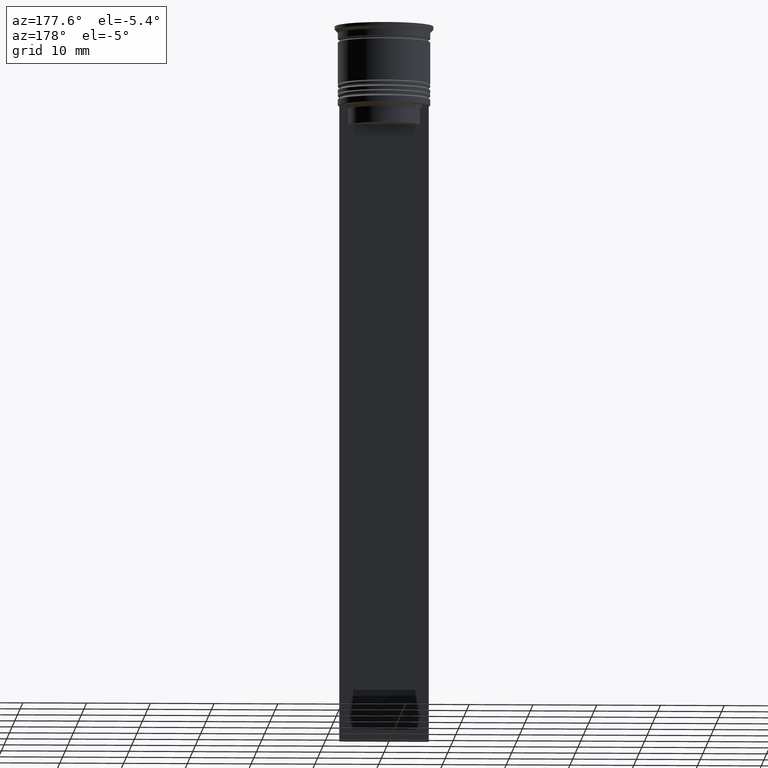
[diagram: clean part render]
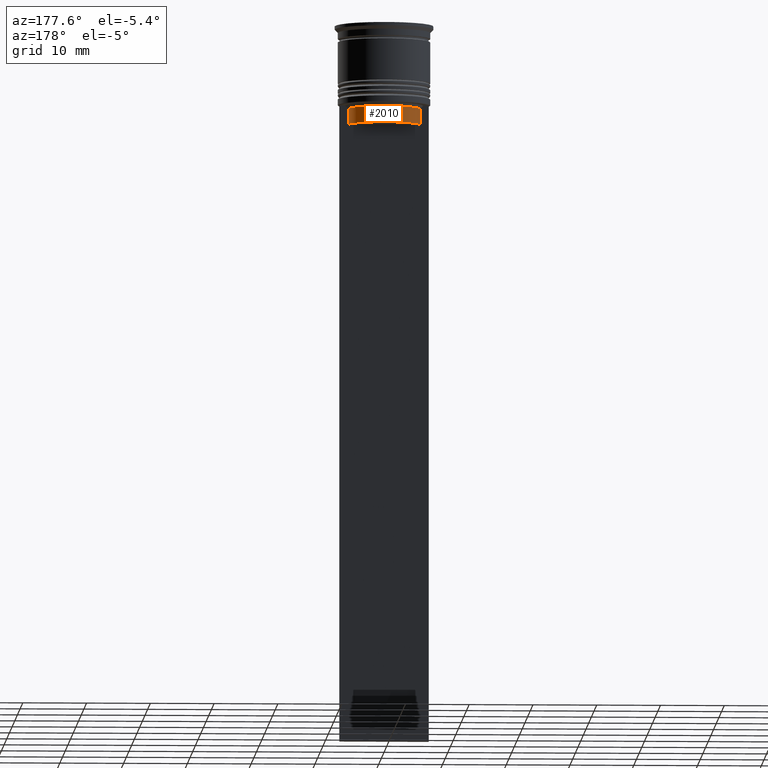
[diagram: same view with one face highlighted and labeled with its STEP entity id]
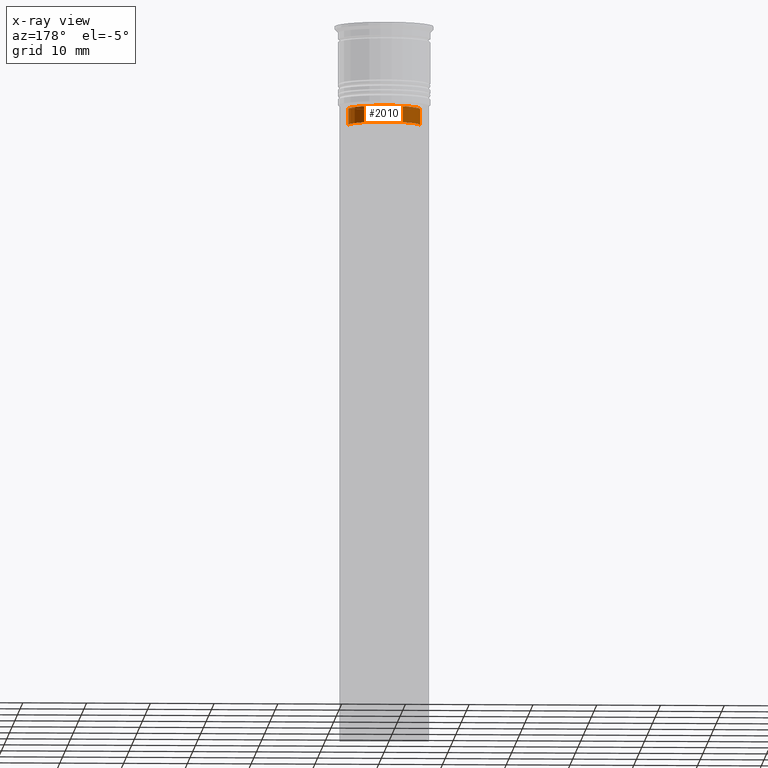
[diagram: x-ray of the same camera — body ghosted, the highlighted face saturated]
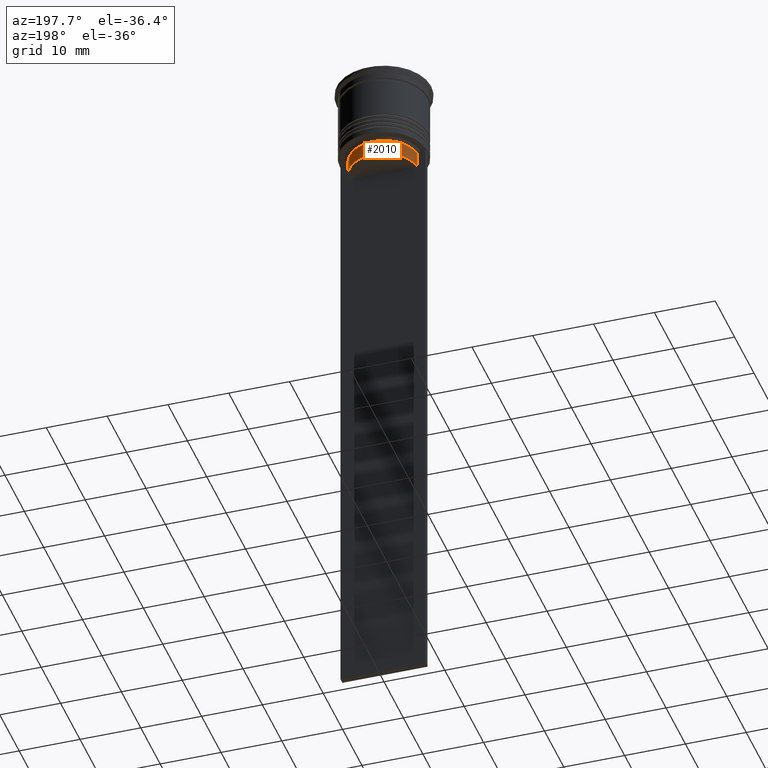
[diagram: same view with one face highlighted and labeled with its STEP entity id]
A machine part, auxiliary view. The second image highlights one B-rep face of the part: STEP entity #2010.
The next image is the same camera in x-ray: the body ghosted, the highlighted face saturated — about 0% of this face is hidden behind the body in this view.
A second angle (auxiliary view) of the same face is appended — the face is thin or edge-on in the first view.
In plain terms, the highlighted cylindrical surface (edge-blend (fillet) strip) has radius 5.65 mm, axis along (-0, -0, 1).
Its self-contained STEP definition (entity closure, byte-faithful):
#38 = AXIS2_PLACEMENT_3D ( 'NONE', #1082, #1417, #1056 ) ;
#77 = CIRCLE ( 'NONE', #38, 5.649999999999997691 ) ;
#106 = DIRECTION ( 'NONE',  ( 1.000000000000000000, 0.000000000000000000, 0.000000000000000000 ) ) ;
#155 = ORIENTED_EDGE ( 'NONE', *, *, #1864, .F. ) ;
#169 = EDGE_CURVE ( 'NONE', #2180, #1795, #1013, .T. ) ;
#180 = ORIENTED_EDGE ( 'NONE', *, *, #169, .T. ) ;
#212 = VERTEX_POINT ( 'NONE', #296 ) ;
#296 = CARTESIAN_POINT ( 'NONE',  ( -5.627832620112292794, 0.4999999999999978351, -13.00000000000000000 ) ) ;
#346 = EDGE_LOOP ( 'NONE', ( #1352, #180, #2314, #155 ) ) ;
#481 = DIRECTION ( 'NONE',  ( -0.000000000000000000, -0.000000000000000000, 1.000000000000000000 ) ) ;
#544 = EDGE_CURVE ( 'NONE', #212, #1795, #1801, .T. ) ;
#554 = AXIS2_PLACEMENT_3D ( 'NONE', #1195, #481, #106 ) ;
#559 = EDGE_CURVE ( 'NONE', #2180, #735, #1033, .T. ) ;
#718 = AXIS2_PLACEMENT_3D ( 'NONE', #1813, #2139, #2331 ) ;
#730 = CYLINDRICAL_SURFACE ( 'NONE', #718, 5.649999999999998579 ) ;
#735 = VERTEX_POINT ( 'NONE', #1630 ) ;
#916 = FACE_OUTER_BOUND ( 'NONE', #346, .T. ) ;
#1013 = CIRCLE ( 'NONE', #554, 5.649999999999998579 ) ;
#1033 = LINE ( 'NONE', #1443, #1810 ) ;
#1056 = DIRECTION ( 'NONE',  ( 1.000000000000000000, 0.000000000000000000, 0.000000000000000000 ) ) ;
#1082 = CARTESIAN_POINT ( 'NONE',  ( 0.000000000000000000, 0.000000000000000000, -13.00000000000000000 ) ) ;
#1173 = VECTOR ( 'NONE', #1779, 1000.000000000000000 ) ;
#1195 = CARTESIAN_POINT ( 'NONE',  ( 0.000000000000000000, 0.000000000000000000, -15.50000000000000000 ) ) ;
#1269 = CARTESIAN_POINT ( 'NONE',  ( -5.627832620112292794, 0.4999999999999978351, 0.000000000000000000 ) ) ;
#1352 = ORIENTED_EDGE ( 'NONE', *, *, #559, .F. ) ;
#1417 = DIRECTION ( 'NONE',  ( -0.000000000000000000, -0.000000000000000000, 1.000000000000000000 ) ) ;
#1443 = CARTESIAN_POINT ( 'NONE',  ( 5.627832620112292794, 0.4999999999999978351, 0.000000000000000000 ) ) ;
#1483 = CARTESIAN_POINT ( 'NONE',  ( 5.627832620112292794, 0.4999999999999978351, -15.50000000000000000 ) ) ;
#1614 = CARTESIAN_POINT ( 'NONE',  ( -5.627832620112292794, 0.4999999999999978351, -15.50000000000000000 ) ) ;
#1630 = CARTESIAN_POINT ( 'NONE',  ( 5.627832620112292794, 0.4999999999999978351, -13.00000000000000000 ) ) ;
#1753 = DIRECTION ( 'NONE',  ( -0.000000000000000000, -0.000000000000000000, 1.000000000000000000 ) ) ;
#1779 = DIRECTION ( 'NONE',  ( 0.000000000000000000, 0.000000000000000000, -1.000000000000000000 ) ) ;
#1795 = VERTEX_POINT ( 'NONE', #1614 ) ;
#1801 = LINE ( 'NONE', #1269, #1173 ) ;
#1810 = VECTOR ( 'NONE', #1753, 1000.000000000000000 ) ;
#1813 = CARTESIAN_POINT ( 'NONE',  ( 0.000000000000000000, 0.000000000000000000, 0.000000000000000000 ) ) ;
#1864 = EDGE_CURVE ( 'NONE', #735, #212, #77, .T. ) ;
#2010 = ADVANCED_FACE ( 'NONE', ( #916 ), #730, .T. ) ;
#2139 = DIRECTION ( 'NONE',  ( -0.000000000000000000, -0.000000000000000000, 1.000000000000000000 ) ) ;
#2180 = VERTEX_POINT ( 'NONE', #1483 ) ;
#2314 = ORIENTED_EDGE ( 'NONE', *, *, #544, .F. ) ;
#2331 = DIRECTION ( 'NONE',  ( 1.000000000000000000, 0.000000000000000000, 0.000000000000000000 ) ) ;